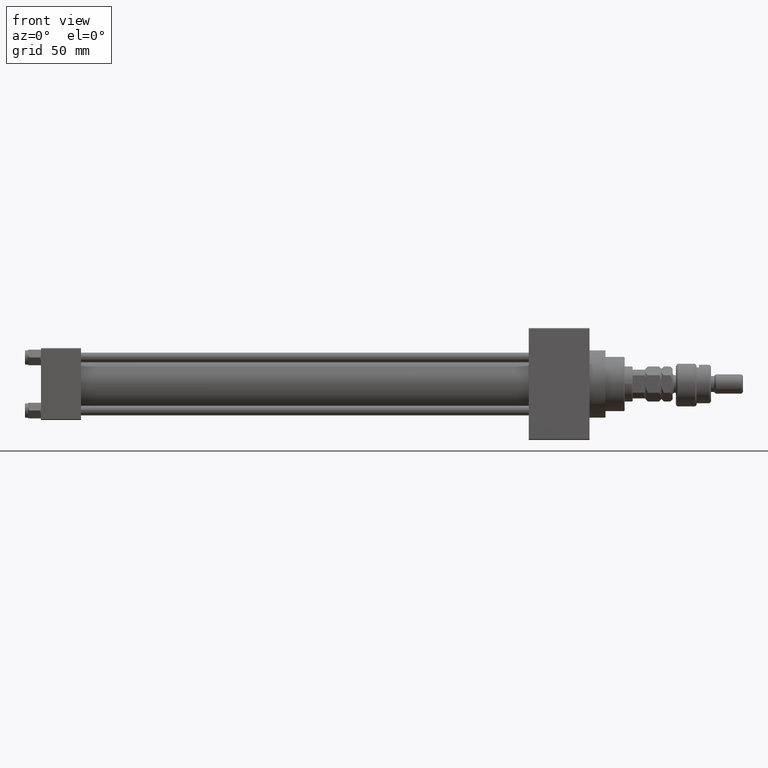
[diagram: clean part render]
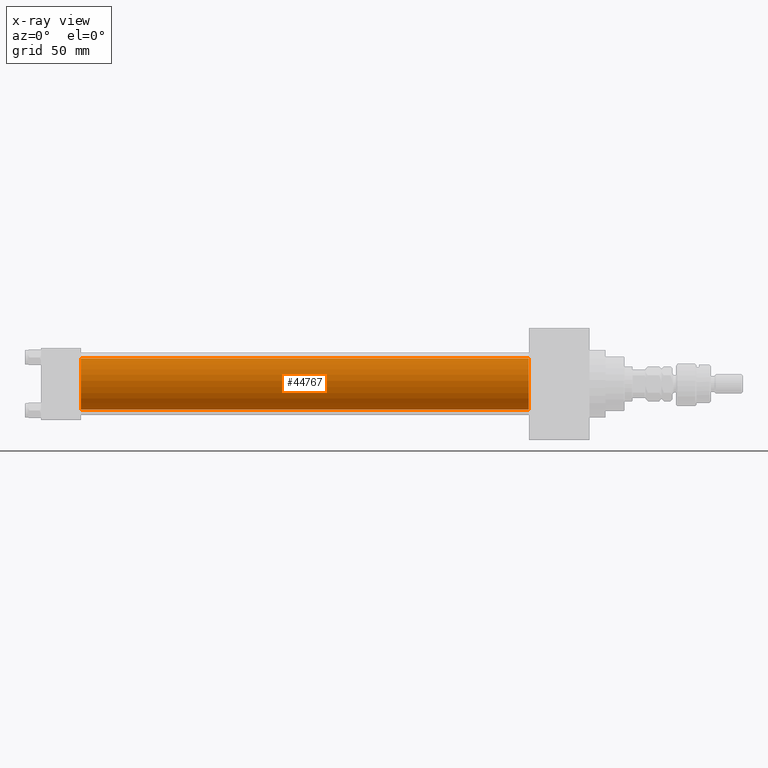
[diagram: x-ray — body ghosted, one internal face saturated and labeled with its STEP entity id]
A machine part, front view, then the same camera in x-ray: the body is ghosted and one INTERNAL B-rep face — a face not visible from any outside direction — is saturated and labeled: STEP entity #44767.
In plain terms, the highlighted cylindrical surface (edge-blend (fillet) strip) has radius 16 mm, axis along (-1, -0, -0).
Its self-contained STEP definition (entity closure, byte-faithful):
#667 = DIRECTION ( 'NONE',  ( 0.000000000000000000, 0.000000000000000000, -1.000000000000000000 ) ) ;
#4089 = DIRECTION ( 'NONE',  ( 1.000000000000000000, 0.000000000000000000, 0.000000000000000000 ) ) ;
#7158 = EDGE_CURVE ( 'NONE', #7755, #11534, #19743, .T. ) ;
#7755 = VERTEX_POINT ( 'NONE', #11192 ) ;
#8428 = VECTOR ( 'NONE', #26530, 1000.000000000000000 ) ;
#8942 = VERTEX_POINT ( 'NONE', #40816 ) ;
#11192 = CARTESIAN_POINT ( 'NONE',  ( 305.0000000000000568, -6.426503353294456087E-16, -16.00000000000000000 ) ) ;
#11534 = VERTEX_POINT ( 'NONE', #29780 ) ;
#12212 = CIRCLE ( 'NONE', #44928, 16.00000000000000000 ) ;
#14250 = EDGE_CURVE ( 'NONE', #8942, #11534, #12212, .T. ) ;
#15315 = ORIENTED_EDGE ( 'NONE', *, *, #24858, .F. ) ;
#16094 = FACE_OUTER_BOUND ( 'NONE', #47939, .T. ) ;
#17128 = VECTOR ( 'NONE', #27345, 1000.000000000000000 ) ;
#17186 = AXIS2_PLACEMENT_3D ( 'NONE', #40084, #4089, #667 ) ;
#19743 = LINE ( 'NONE', #44150, #17128 ) ;
#20522 = CIRCLE ( 'NONE', #17186, 16.00000000000000000 ) ;
#21318 = DIRECTION ( 'NONE',  ( 1.000000000000000000, 0.000000000000000000, 0.000000000000000000 ) ) ;
#24858 = EDGE_CURVE ( 'NONE', #46828, #8942, #30954, .T. ) ;
#26530 = DIRECTION ( 'NONE',  ( -1.000000000000000000, -0.000000000000000000, -0.000000000000000000 ) ) ;
#27345 = DIRECTION ( 'NONE',  ( -1.000000000000000000, -0.000000000000000000, -0.000000000000000000 ) ) ;
#29780 = CARTESIAN_POINT ( 'NONE',  ( 25.00000000000000000, -6.426503353294456087E-16, -16.00000000000000000 ) ) ;
#30954 = LINE ( 'NONE', #50660, #8428 ) ;
#33599 = CARTESIAN_POINT ( 'NONE',  ( 305.0000000000000568, -2.602085213965210642E-15, 16.00000000000000000 ) ) ;
#35784 = CARTESIAN_POINT ( 'NONE',  ( 305.0000000000000568, -2.602085213965210642E-15, 0.000000000000000000 ) ) ;
#36042 = DIRECTION ( 'NONE',  ( 0.000000000000000000, 0.000000000000000000, 1.000000000000000000 ) ) ;
#36809 = DIRECTION ( 'NONE',  ( 0.000000000000000000, 0.000000000000000000, -1.000000000000000000 ) ) ;
#37515 = AXIS2_PLACEMENT_3D ( 'NONE', #35784, #51533, #36042 ) ;
#38608 = EDGE_CURVE ( 'NONE', #46828, #7755, #20522, .T. ) ;
#39194 = CYLINDRICAL_SURFACE ( 'NONE', #37515, 16.00000000000000000 ) ;
#40084 = CARTESIAN_POINT ( 'NONE',  ( 305.0000000000000568, -2.602085213965210642E-15, 0.000000000000000000 ) ) ;
#40816 = CARTESIAN_POINT ( 'NONE',  ( 25.00000000000000000, -2.602085213965210642E-15, 16.00000000000000000 ) ) ;
#44150 = CARTESIAN_POINT ( 'NONE',  ( 305.0000000000000568, -6.426503353294456087E-16, -16.00000000000000000 ) ) ;
#44657 = ORIENTED_EDGE ( 'NONE', *, *, #7158, .T. ) ;
#44767 = ADVANCED_FACE ( 'NONE', ( #16094 ), #39194, .F. ) ;
#44928 = AXIS2_PLACEMENT_3D ( 'NONE', #45455, #21318, #36809 ) ;
#45455 = CARTESIAN_POINT ( 'NONE',  ( 25.00000000000000000, -2.602085213965210642E-15, 0.000000000000000000 ) ) ;
#46828 = VERTEX_POINT ( 'NONE', #33599 ) ;
#47939 = EDGE_LOOP ( 'NONE', ( #48831, #44657, #48143, #15315 ) ) ;
#48143 = ORIENTED_EDGE ( 'NONE', *, *, #14250, .F. ) ;
#48831 = ORIENTED_EDGE ( 'NONE', *, *, #38608, .T. ) ;
#50660 = CARTESIAN_POINT ( 'NONE',  ( 305.0000000000000568, -2.602085213965210642E-15, 16.00000000000000000 ) ) ;
#51533 = DIRECTION ( 'NONE',  ( -1.000000000000000000, -0.000000000000000000, -0.000000000000000000 ) ) ;